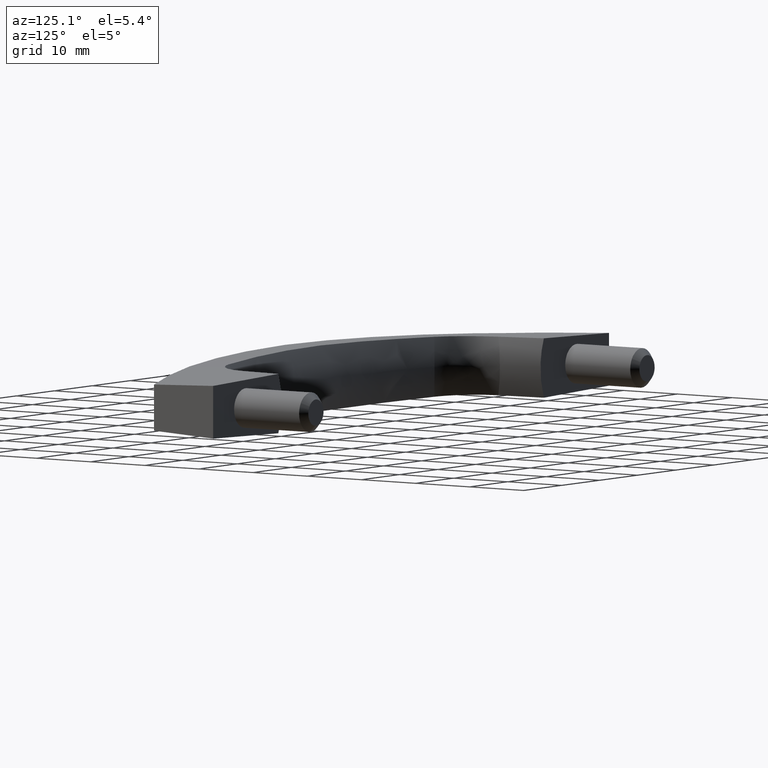
[diagram: clean part render]
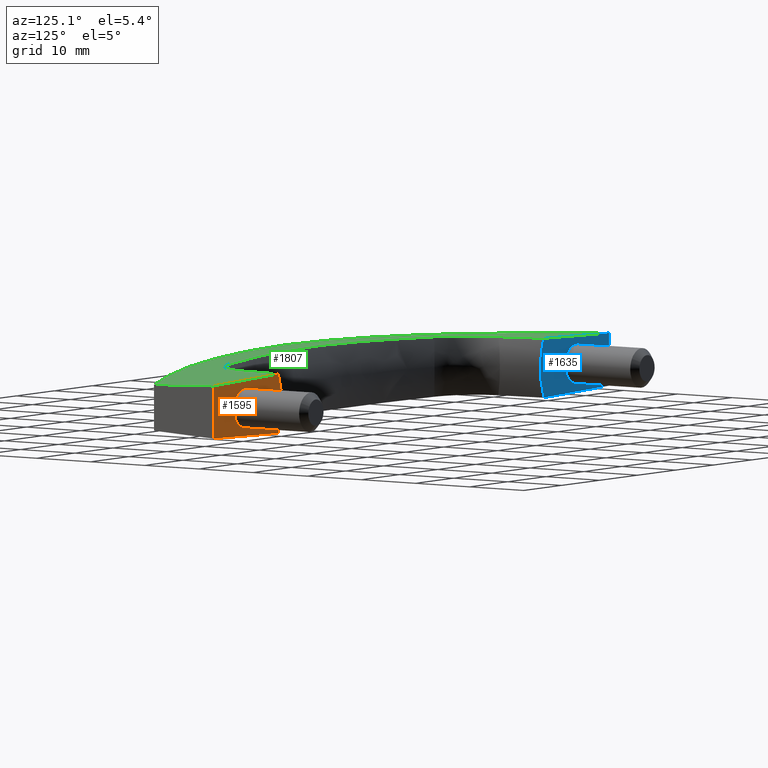
[diagram: same view with three faces highlighted in distinct colors, each labeled with its STEP entity id]
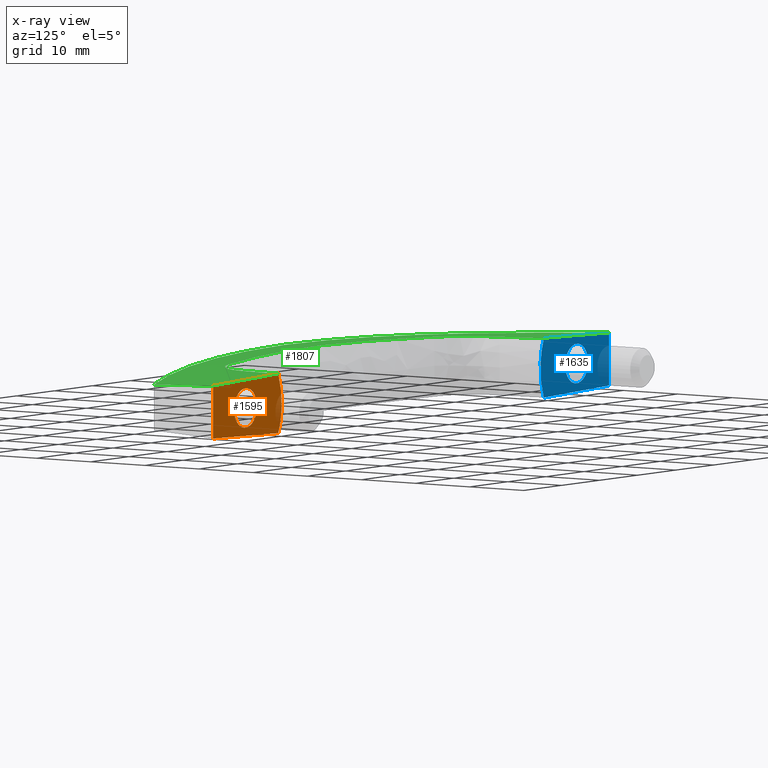
[diagram: x-ray of the same camera — body ghosted, the three highlighted faces saturated]
A machine part, auxiliary view with three faces highlighted in distinct colors.
The next image is the same camera in x-ray (body ghosted, the three faces saturated) — at least one of them is partly hidden behind the body in this view.
Their STEP definitions:

[orange] entity #1595 — the highlighted face is a freeform B-spline surface patch.
#680=CARTESIAN_POINT('',(43.854602704306281,-2.979028579051059,4.259142E-017));
#681=VERTEX_POINT('',#680);
#687=CARTESIAN_POINT('',(40.500500000000002,0.0,0.0));
#688=VERTEX_POINT('',#687);
#689=CARTESIAN_POINT('',(43.854602704306281,-2.979028579051059,4.259142E-017));
#690=CARTESIAN_POINT('',(43.678172359295303,-3.000000000000000,0.0));
#691=CARTESIAN_POINT('',(43.500500000000002,-3.0,0.0));
#692=CARTESIAN_POINT('',(40.500500000000002,-3.0,0.0));
#693=CARTESIAN_POINT('',(40.500500000000002,0.0,0.0));
#701=(BOUNDED_CURVE()B_SPLINE_CURVE(2,(#689,#690,#691,#692,#693),.UNSPECIFIED.,.F.,.U.)B_SPLINE_CURVE_WITH_KNOTS((3,2,3),(0.229562473477520,0.250000000000000,0.500000000000000),.UNSPECIFIED.)CURVE()GEOMETRIC_REPRESENTATION_ITEM()RATIONAL_B_SPLINE_CURVE((0.956026754113160,0.976055948288982,1.0,0.707106781186548,1.0))REPRESENTATION_ITEM(''));
#702=EDGE_CURVE('',#681,#688,#701,.T.);
#704=CARTESIAN_POINT('',(43.317354381319689,2.994404395260969,4.163336E-017));
#705=VERTEX_POINT('',#704);
#706=CARTESIAN_POINT('',(40.500500000000002,0.0,0.0));
#707=CARTESIAN_POINT('',(40.500500000000002,2.822118200574073,0.0));
#708=CARTESIAN_POINT('',(43.317354381319689,2.994404395260969,4.163336E-017));
#716=(BOUNDED_CURVE()B_SPLINE_CURVE(2,(#706,#707,#708),.UNSPECIFIED.,.F.,.U.)B_SPLINE_CURVE_WITH_KNOTS((3,3),(0.500000000000000,0.739332962233241),.UNSPECIFIED.)CURVE()GEOMETRIC_REPRESENTATION_ITEM()RATIONAL_B_SPLINE_CURVE((1.0,0.719603993293391,0.976072041654497))REPRESENTATION_ITEM(''));
#717=EDGE_CURVE('',#688,#705,#716,.T.);
#791=CARTESIAN_POINT('',(46.500500000000002,0.0,0.0));
#792=VERTEX_POINT('',#791);
#793=CARTESIAN_POINT('',(43.317354381319689,2.994404395260968,4.163336E-017));
#794=CARTESIAN_POINT('',(43.408841710028291,3.000000000000000,0.0));
#795=CARTESIAN_POINT('',(43.500500000000002,3.0,0.0));
#796=CARTESIAN_POINT('',(46.500500000000002,3.0,0.0));
#797=CARTESIAN_POINT('',(46.500500000000002,0.0,0.0));
#805=(BOUNDED_CURVE()B_SPLINE_CURVE(2,(#793,#794,#795,#796,#797),.UNSPECIFIED.,.F.,.U.)B_SPLINE_CURVE_WITH_KNOTS((3,2,3),(0.739332962233241,0.750000000000000,1.0),.UNSPECIFIED.)CURVE()GEOMETRIC_REPRESENTATION_ITEM()RATIONAL_B_SPLINE_CURVE((0.976072041654497,0.987502787893157,1.0,0.707106781186548,1.0))REPRESENTATION_ITEM(''));
#806=EDGE_CURVE('',#705,#792,#805,.T.);
#808=CARTESIAN_POINT('',(46.500500000000002,0.0,0.0));
#809=CARTESIAN_POINT('',(46.500500000000009,-2.664523577248798,0.0));
#810=CARTESIAN_POINT('',(43.854602704306281,-2.979028579051059,4.259142E-017));
#818=(BOUNDED_CURVE()B_SPLINE_CURVE(2,(#808,#809,#810),.UNSPECIFIED.,.F.,.U.)B_SPLINE_CURVE_WITH_KNOTS((3,3),(0.0,0.229562473477520),.UNSPECIFIED.)CURVE()GEOMETRIC_REPRESENTATION_ITEM()RATIONAL_B_SPLINE_CURVE((1.0,0.731050832897566,0.956026754113160))REPRESENTATION_ITEM(''));
#819=EDGE_CURVE('',#792,#681,#818,.T.);
#1038=CARTESIAN_POINT('',(34.890900150486601,4.506056417058750,1.000492E-013));
#1039=VERTEX_POINT('',#1038);
#1047=CARTESIAN_POINT('',(34.890900150486601,-4.506056417058740,2.667980E-013));
#1048=VERTEX_POINT('',#1047);
#1049=CARTESIAN_POINT('',(34.890900150486601,4.506056417058750,1.000492E-013));
#1050=CARTESIAN_POINT('',(33.039816790408672,6.086895E-015,1.791612E-011));
#1051=CARTESIAN_POINT('',(34.890900150486601,-4.506056417058740,2.667980E-013));
#1059=(BOUNDED_CURVE()B_SPLINE_CURVE(2,(#1049,#1050,#1051),.UNSPECIFIED.,.F.,.U.)CURVE()GEOMETRIC_REPRESENTATION_ITEM()QUASI_UNIFORM_CURVE()RATIONAL_B_SPLINE_CURVE((1.0,0.926820489205057,1.0))REPRESENTATION_ITEM(''));
#1060=EDGE_CURVE('',#1039,#1048,#1059,.T.);
#1556=CARTESIAN_POINT('',(33.101411781491620,-4.956211318858821,-7.717073E-012));
#1557=CARTESIAN_POINT('',(33.101411781491620,4.956210996560560,4.340786E-011));
#1558=CARTESIAN_POINT('',(52.899598540374022,-4.956211318858821,-1.246783E-011));
#1559=CARTESIAN_POINT('',(52.899598540374022,4.956210996560560,3.865711E-011));
#1560=B_SPLINE_SURFACE_WITH_KNOTS('',1,1,((#1556,#1558),(#1557,#1559)),.UNSPECIFIED.,.F.,.F.,.U.,(2,2),(2,2),(0.0,9.912422315419381),(0.0,19.798186758882402),.UNSPECIFIED.);
#1561=ORIENTED_EDGE('',*,*,#1060,.F.);
#1562=CARTESIAN_POINT('',(52.000500000002198,3.999999999999950,-8.881784E-013));
#1563=VERTEX_POINT('',#1562);
#1564=CARTESIAN_POINT('',(52.000500000002198,3.999999999999950,-8.881784E-013));
#1565=CARTESIAN_POINT('',(47.813754051236387,4.085719844298355,-7.697344E-013));
#1566=CARTESIAN_POINT('',(41.533052520568774,4.214311539109042,7.414367E-014));
#1567=CARTESIAN_POINT('',(36.512568682675941,4.439312170158003,1.183764E-013));
#1568=CARTESIAN_POINT('',(34.890900150486601,4.506056417058750,1.000492E-013));
#1569=B_SPLINE_CURVE_WITH_KNOTS('',3,(#1564,#1565,#1566,#1567,#1568),.UNSPECIFIED.,.F.,.U.,(4,1,4),(0.0,0.099202640815332,0.148817765787485),.UNSPECIFIED.);
#1570=EDGE_CURVE('',#1563,#1039,#1569,.T.);
#1571=ORIENTED_EDGE('',*,*,#1570,.F.);
#1572=CARTESIAN_POINT('',(52.000500000002198,-4.0,-3.774758E-012));
#1573=VERTEX_POINT('',#1572);
#1574=CARTESIAN_POINT('',(52.000500000002198,-4.0,-3.774758E-012));
#1575=CARTESIAN_POINT('',(52.000500000002198,3.999999999999950,-8.881784E-013));
#1576=QUASI_UNIFORM_CURVE('',1,(#1574,#1575),.UNSPECIFIED.,.F.,.U.);
#1577=EDGE_CURVE('',#1573,#1563,#1576,.T.);
#1578=ORIENTED_EDGE('',*,*,#1577,.F.);
#1579=CARTESIAN_POINT('',(52.000500000002198,-4.0,-3.774758E-012));
#1580=CARTESIAN_POINT('',(47.813754051236387,-4.085719844298395,-2.052625E-012));
#1581=CARTESIAN_POINT('',(41.533052520568774,-4.214311539109037,1.977164E-013));
#1582=CARTESIAN_POINT('',(36.512568682675941,-4.439312170157995,3.156705E-013));
#1583=CARTESIAN_POINT('',(34.890900150486601,-4.506056417058740,2.667980E-013));
#1584=B_SPLINE_CURVE_WITH_KNOTS('',3,(#1579,#1580,#1581,#1582,#1583),.UNSPECIFIED.,.F.,.U.,(4,1,4),(0.0,0.099202640815332,0.148817765787485),.UNSPECIFIED.);
#1585=EDGE_CURVE('',#1573,#1048,#1584,.T.);
#1586=ORIENTED_EDGE('',*,*,#1585,.T.);
#1587=EDGE_LOOP('',(#1561,#1571,#1578,#1586));
#1588=FACE_OUTER_BOUND('',#1587,.T.);
#1589=ORIENTED_EDGE('',*,*,#717,.F.);
#1590=ORIENTED_EDGE('',*,*,#702,.F.);
#1591=ORIENTED_EDGE('',*,*,#819,.F.);
#1592=ORIENTED_EDGE('',*,*,#806,.F.);
#1593=EDGE_LOOP('',(#1589,#1590,#1591,#1592));
#1594=FACE_BOUND('',#1593,.T.);
#1595=ADVANCED_FACE('',(#1588,#1594),#1560,.T.);

[blue] entity #1635 — the highlighted face is a freeform B-spline surface patch.
#494=CARTESIAN_POINT('',(-43.145897295693722,-2.979028579051059,4.259142E-017));
#495=VERTEX_POINT('',#494);
#501=CARTESIAN_POINT('',(-46.500000000000000,0.0,0.0));
#502=VERTEX_POINT('',#501);
#503=CARTESIAN_POINT('',(-43.145897295693715,-2.979028579051059,4.259142E-017));
#504=CARTESIAN_POINT('',(-43.322327640704707,-3.000000000000000,0.0));
#505=CARTESIAN_POINT('',(-43.500000000000000,-3.0,0.0));
#506=CARTESIAN_POINT('',(-46.500000000000000,-3.0,0.0));
#507=CARTESIAN_POINT('',(-46.500000000000000,0.0,0.0));
#515=(BOUNDED_CURVE()B_SPLINE_CURVE(2,(#503,#504,#505,#506,#507),.UNSPECIFIED.,.F.,.U.)B_SPLINE_CURVE_WITH_KNOTS((3,2,3),(0.229562473477520,0.250000000000000,0.500000000000000),.UNSPECIFIED.)CURVE()GEOMETRIC_REPRESENTATION_ITEM()RATIONAL_B_SPLINE_CURVE((0.956026754113160,0.976055948288982,1.0,0.707106781186548,1.0))REPRESENTATION_ITEM(''));
#516=EDGE_CURVE('',#495,#502,#515,.T.);
#518=CARTESIAN_POINT('',(-43.683145618680300,2.994404395260969,4.163336E-017));
#519=VERTEX_POINT('',#518);
#520=CARTESIAN_POINT('',(-46.500000000000000,0.0,0.0));
#521=CARTESIAN_POINT('',(-46.500000000000007,2.822118200574073,0.0));
#522=CARTESIAN_POINT('',(-43.683145618680300,2.994404395260969,4.163336E-017));
#530=(BOUNDED_CURVE()B_SPLINE_CURVE(2,(#520,#521,#522),.UNSPECIFIED.,.F.,.U.)B_SPLINE_CURVE_WITH_KNOTS((3,3),(0.500000000000000,0.739332962233241),.UNSPECIFIED.)CURVE()GEOMETRIC_REPRESENTATION_ITEM()RATIONAL_B_SPLINE_CURVE((1.0,0.719603993293391,0.976072041654497))REPRESENTATION_ITEM(''));
#531=EDGE_CURVE('',#502,#519,#530,.T.);
#605=CARTESIAN_POINT('',(-40.499999999999993,0.0,0.0));
#606=VERTEX_POINT('',#605);
#607=CARTESIAN_POINT('',(-43.683145618680300,2.994404395260968,4.163336E-017));
#608=CARTESIAN_POINT('',(-43.591658289971718,3.000000000000000,0.0));
#609=CARTESIAN_POINT('',(-43.500000000000000,3.0,0.0));
#610=CARTESIAN_POINT('',(-40.499999999999993,3.0,0.0));
#611=CARTESIAN_POINT('',(-40.499999999999993,0.0,0.0));
#619=(BOUNDED_CURVE()B_SPLINE_CURVE(2,(#607,#608,#609,#610,#611),.UNSPECIFIED.,.F.,.U.)B_SPLINE_CURVE_WITH_KNOTS((3,2,3),(0.739332962233241,0.750000000000000,1.0),.UNSPECIFIED.)CURVE()GEOMETRIC_REPRESENTATION_ITEM()RATIONAL_B_SPLINE_CURVE((0.976072041654497,0.987502787893157,1.0,0.707106781186548,1.0))REPRESENTATION_ITEM(''));
#620=EDGE_CURVE('',#519,#606,#619,.T.);
#622=CARTESIAN_POINT('',(-40.499999999999993,0.0,0.0));
#623=CARTESIAN_POINT('',(-40.499999999999986,-2.664523577248798,0.0));
#624=CARTESIAN_POINT('',(-43.145897295693715,-2.979028579051059,4.259142E-017));
#632=(BOUNDED_CURVE()B_SPLINE_CURVE(2,(#622,#623,#624),.UNSPECIFIED.,.F.,.U.)B_SPLINE_CURVE_WITH_KNOTS((3,3),(0.0,0.229562473477520),.UNSPECIFIED.)CURVE()GEOMETRIC_REPRESENTATION_ITEM()RATIONAL_B_SPLINE_CURVE((1.0,0.731050832897566,0.956026754113160))REPRESENTATION_ITEM(''));
#633=EDGE_CURVE('',#606,#495,#632,.T.);
#1101=CARTESIAN_POINT('',(-34.890390151748349,4.506056420153589,5.739415E-011));
#1102=VERTEX_POINT('',#1101);
#1127=CARTESIAN_POINT('',(-34.890390151756549,-4.506056420150210,2.667980E-013));
#1128=VERTEX_POINT('',#1127);
#1136=CARTESIAN_POINT('',(-34.890390151756549,-4.506056420150210,2.667980E-013));
#1137=CARTESIAN_POINT('',(-33.039306788926787,1.964590E-012,3.370925E-011));
#1138=CARTESIAN_POINT('',(-34.890390151748349,4.506056420153588,5.739415E-011));
#1146=(BOUNDED_CURVE()B_SPLINE_CURVE(2,(#1136,#1137,#1138),.UNSPECIFIED.,.F.,.U.)CURVE()GEOMETRIC_REPRESENTATION_ITEM()QUASI_UNIFORM_CURVE()RATIONAL_B_SPLINE_CURVE((1.0,0.926820489100624,1.0))REPRESENTATION_ITEM(''));
#1147=EDGE_CURVE('',#1128,#1102,#1146,.T.);
#1596=CARTESIAN_POINT('',(-52.899087944875852,-4.956211322259296,1.291952E-011));
#1597=CARTESIAN_POINT('',(-52.899087944875852,4.956210999964405,6.404445E-011));
#1598=CARTESIAN_POINT('',(-33.100900123931709,-4.956211322259296,8.168767E-012));
#1599=CARTESIAN_POINT('',(-33.100900123931709,4.956210999964405,5.929370E-011));
#1600=B_SPLINE_SURFACE_WITH_KNOTS('',1,1,((#1596,#1598),(#1597,#1599)),.UNSPECIFIED.,.F.,.F.,.U.,(2,2),(2,2),(0.0,9.912422322223701),(0.0,19.798187820944140),.UNSPECIFIED.);
#1601=ORIENTED_EDGE('',*,*,#1147,.F.);
#1602=CARTESIAN_POINT('',(-51.999990000002107,-4.0,-2.442491E-012));
#1603=VERTEX_POINT('',#1602);
#1604=CARTESIAN_POINT('',(-34.890390151756549,-4.506056420150210,2.667980E-013));
#1605=CARTESIAN_POINT('',(-36.512058663586387,-4.439312172977235,3.156705E-013));
#1606=CARTESIAN_POINT('',(-41.532542203406862,-4.214311548218846,1.977165E-013));
#1607=CARTESIAN_POINT('',(-47.813243978924412,-4.085719846825340,-2.052625E-012));
#1608=CARTESIAN_POINT('',(-51.999990000002107,-4.0,-2.442491E-012));
#1609=B_SPLINE_CURVE_WITH_KNOTS('',3,(#1604,#1605,#1606,#1607,#1608),.UNSPECIFIED.,.F.,.U.,(4,1,4),(0.851182230981259,0.900797359184668,1.0),.UNSPECIFIED.);
#1610=EDGE_CURVE('',#1128,#1603,#1609,.T.);
#1611=ORIENTED_EDGE('',*,*,#1610,.T.);
#1612=CARTESIAN_POINT('',(-51.999990000002200,3.999999999999950,-8.881784E-013));
#1613=VERTEX_POINT('',#1612);
#1614=CARTESIAN_POINT('',(-51.999990000002107,-4.0,-2.442491E-012));
#1615=CARTESIAN_POINT('',(-51.999990000002200,3.999999999999950,-8.881784E-013));
#1616=QUASI_UNIFORM_CURVE('',1,(#1614,#1615),.UNSPECIFIED.,.F.,.U.);
#1617=EDGE_CURVE('',#1603,#1613,#1616,.T.);
#1618=ORIENTED_EDGE('',*,*,#1617,.T.);
#1619=CARTESIAN_POINT('',(-34.890390151748349,4.506056420153589,5.739415E-011));
#1620=CARTESIAN_POINT('',(-36.512058663580653,4.439312172977503,1.183764E-013));
#1621=CARTESIAN_POINT('',(-41.532542203403288,4.214311548218925,7.414368E-014));
#1622=CARTESIAN_POINT('',(-47.813243978924497,4.085719846825300,-7.697344E-013));
#1623=CARTESIAN_POINT('',(-51.999990000002200,3.999999999999950,-8.881784E-013));
#1624=B_SPLINE_CURVE_WITH_KNOTS('',3,(#1619,#1620,#1621,#1622,#1623),.UNSPECIFIED.,.F.,.U.,(4,1,4),(0.851182230981173,0.900797359184668,1.0),.UNSPECIFIED.);
#1625=EDGE_CURVE('',#1102,#1613,#1624,.T.);
#1626=ORIENTED_EDGE('',*,*,#1625,.F.);
#1627=EDGE_LOOP('',(#1601,#1611,#1618,#1626));
#1628=FACE_OUTER_BOUND('',#1627,.T.);
#1629=ORIENTED_EDGE('',*,*,#531,.F.);
#1630=ORIENTED_EDGE('',*,*,#516,.F.);
#1631=ORIENTED_EDGE('',*,*,#633,.F.);
#1632=ORIENTED_EDGE('',*,*,#620,.F.);
#1633=EDGE_LOOP('',(#1629,#1630,#1631,#1632));
#1634=FACE_BOUND('',#1633,.T.);
#1635=ADVANCED_FACE('',(#1628,#1634),#1600,.T.);

[green] entity #1807 — the highlighted face is a freeform B-spline surface patch.
#863=CARTESIAN_POINT('',(51.000556732043997,3.500028366020975,11.623340546744480));
#864=VERTEX_POINT('',#863);
#865=CARTESIAN_POINT('',(-51.000025265063101,3.500017632523155,11.623590079103939));
#866=VERTEX_POINT('',#865);
#867=CARTESIAN_POINT('',(51.000556732043997,3.500028366020975,11.623340546744480));
#868=CARTESIAN_POINT('',(49.999002726022930,3.531916449465963,12.093589387801240));
#869=CARTESIAN_POINT('',(48.993465843662143,3.569178366427639,12.548806289668089));
#870=CARTESIAN_POINT('',(46.974492879915758,3.652934378367684,13.429608249697329));
#871=CARTESIAN_POINT('',(45.961057254128853,3.699441997909214,13.855193233760520));
#872=CARTESIAN_POINT('',(43.926277058533223,3.798477331912412,14.677103705804670));
#873=CARTESIAN_POINT('',(42.904933040966462,3.851020688427025,15.073429199283540));
#874=CARTESIAN_POINT('',(40.854234036196416,3.956753661188666,15.837134774048501));
#875=CARTESIAN_POINT('',(39.824873357617982,4.009764096124000,16.204517078858089));
#876=CARTESIAN_POINT('',(37.757962069904799,4.109431895350990,16.910579360238700));
#877=CARTESIAN_POINT('',(36.720413839877892,4.156170116268301,17.249257651894521));
#878=CARTESIAN_POINT('',(34.637102472804152,4.241789660878911,17.898012680260749));
#879=CARTESIAN_POINT('',(33.591339739675782,4.280688630668315,18.208088633844529));
#880=CARTESIAN_POINT('',(31.491679830943479,4.352915881823312,18.799638889055490));
#881=CARTESIAN_POINT('',(30.437785816641899,4.386344299365500,19.081111878358410));
#882=CARTESIAN_POINT('',(28.322021211798781,4.452714076332899,19.615380127274580));
#883=CARTESIAN_POINT('',(27.260148453099450,4.485583844551221,19.868176656518070));
#884=CARTESIAN_POINT('',(25.128413401189999,4.551173081820926,20.345002578310780));
#885=CARTESIAN_POINT('',(24.058550642595179,4.583875464557368,20.569032461515079));
#886=CARTESIAN_POINT('',(21.910736677450942,4.647444661569059,20.988182486766551));
#887=CARTESIAN_POINT('',(20.832784705203281,4.678285943259620,21.183303108867630));
#888=CARTESIAN_POINT('',(18.668618978032740,4.734851863109988,21.544426299372770));
#889=CARTESIAN_POINT('',(17.582404978788539,4.760572779791754,21.710428459566391));
#890=CARTESIAN_POINT('',(15.401641027785750,4.807195644244615,22.013009732584290));
#891=CARTESIAN_POINT('',(14.307091453292490,4.828109198884669,22.149588732338330));
#892=CARTESIAN_POINT('',(12.658977065303720,4.857030791915112,22.332104965683460));
#893=CARTESIAN_POINT('',(12.108162783310890,4.866277874380287,22.389252457622909));
#894=CARTESIAN_POINT('',(11.007506080033330,4.884201144090866,22.495757679841422));
#895=CARTESIAN_POINT('',(10.457435601360650,4.892883453597388,22.545146488110269));
#896=CARTESIAN_POINT('',(8.807988132289959,4.918563493852848,22.681797193189858));
#897=CARTESIAN_POINT('',(7.709375502001534,4.935140206601808,22.757545515715460));
#898=CARTESIAN_POINT('',(4.416604816389818,4.978782345057838,22.939247304400489));
#899=CARTESIAN_POINT('',(2.225511809313357,4.999755386272868,22.999690916634780));
#900=CARTESIAN_POINT('',(-2.148375621563903,5.000240363043934,23.001096687549321));
#901=CARTESIAN_POINT('',(-4.331169221576038,4.979651874879330,22.942061397147000));
#902=CARTESIAN_POINT('',(-7.599363656990462,4.936710861738606,22.764501313341210));
#903=CARTESIAN_POINT('',(-8.687761816482308,4.920379859966935,22.690471264974612));
#904=CARTESIAN_POINT('',(-10.862586770261469,4.886609899778943,22.512719755969790));
#905=CARTESIAN_POINT('',(-11.949014786770730,4.869296781930019,22.408997975447569));
#906=CARTESIAN_POINT('',(-14.119874992412861,4.831542045238783,22.171794869050519));
#907=CARTESIAN_POINT('',(-15.204306938737910,4.811075219356352,22.038313637763949));
#908=CARTESIAN_POINT('',(-17.371149789208069,4.765350302335436,21.741458559034239));
#909=CARTESIAN_POINT('',(-18.453560568742471,4.740078709467575,21.578084844726138));
#910=CARTESIAN_POINT('',(-20.616342779029249,4.684241908919143,21.221242710653229));
#911=CARTESIAN_POINT('',(-21.696713474227220,4.653599707533013,21.027774672047840));
#912=CARTESIAN_POINT('',(-23.855426540330139,4.590007380337123,20.610464076751480));
#913=CARTESIAN_POINT('',(-24.933769402922039,4.557107226098075,20.386621489054370));
#914=CARTESIAN_POINT('',(-26.549758825610759,4.507439015716843,20.027810333352068));
#915=CARTESIAN_POINT('',(-27.088167645570461,4.490816049962085,19.904364820701499));
#916=CARTESIAN_POINT('',(-28.164473539714329,4.457465570621349,19.649738821208398));
#917=CARTESIAN_POINT('',(-28.701891684283389,4.440753470120943,19.518667853623541));
#918=CARTESIAN_POINT('',(-30.309634480285791,4.390390571124663,19.114771966315441));
#919=CARTESIAN_POINT('',(-31.376394350853928,4.356671603088663,18.831042681396340));
#920=CARTESIAN_POINT('',(-33.499654758143748,4.283995513256559,18.234895866171922));
#921=CARTESIAN_POINT('',(-34.556150467388122,4.244907955321901,17.922480116042479));
#922=CARTESIAN_POINT('',(-36.658830689308068,4.158850787373298,17.269127855942720));
#923=CARTESIAN_POINT('',(-37.705014801088758,4.111864449929127,16.928192197698909));
#924=CARTESIAN_POINT('',(-39.787159076134976,4.011644228251094,16.217854258796670));
#925=CARTESIAN_POINT('',(-40.823116469606717,3.958328160219311,15.848453876523619));
#926=CARTESIAN_POINT('',(-42.885050260478657,3.852014846890776,15.081096670595670));
#927=CARTESIAN_POINT('',(-43.911033667305333,3.799209022406623,14.683137019843731));
#928=CARTESIAN_POINT('',(-45.953203617062663,3.699772870704951,13.858488127585771));
#929=CARTESIAN_POINT('',(-46.969389412460693,3.653125293275986,13.431798809787560));
#930=CARTESIAN_POINT('',(-48.992021212346202,3.569199654447789,12.549472302757300));
#931=CARTESIAN_POINT('',(-49.998466607348611,3.531906923342089,12.093835123569660));
#932=CARTESIAN_POINT('',(-51.000025265063101,3.500017632523155,11.623590079103939));
#933=B_SPLINE_CURVE_WITH_KNOTS('',3,(#867,#868,#869,#870,#871,#872,#873,#874,#875,#876,#877,#878,#879,#880,#881,#882,#883,#884,#885,#886,#887,#888,#889,#890,#891,#892,#893,#894,#895,#896,#897,#898,#899,#900,#901,#902,#903,#904,#905,#906,#907,#908,#909,#910,#911,#912,#913,#914,#915,#916,#917,#918,#919,#920,#921,#922,#923,#924,#925,#926,#927,#928,#929,#930,#931,#932),.UNSPECIFIED.,.F.,.U.,(4,2,2,2,2,2,2,2,2,2,2,2,2,2,2,2,2,2,2,2,2,2,2,2,2,2,2,2,2,2,2,2,4),(0.0,0.031250000000000,0.062500000000000,0.093750000000000,0.125000000000000,0.156250000000000,0.187500000000000,0.218750000000000,0.250000000000000,0.281250000000000,0.312500000000000,0.343750000000000,0.375000000000000,0.390625000000000,0.406250000000000,0.437500000000000,0.500000000000000,0.562500000000000,0.593750000000000,0.625000000000000,0.656250000000000,0.687500000000000,0.718750000000000,0.750000000000000,0.765624999999999,0.781249999999999,0.812500000000000,0.843750000000000,0.875000000000000,0.906250000000000,0.937500000000000,0.968750000000000,1.0),.UNSPECIFIED.);
#934=EDGE_CURVE('',#864,#866,#933,.T.);
#1036=CARTESIAN_POINT('',(33.607991988725203,4.442346194605840,7.508706836888160));
#1037=VERTEX_POINT('',#1036);
#1038=CARTESIAN_POINT('',(34.890900150486601,4.506056417058750,1.000492E-013));
#1039=VERTEX_POINT('',#1038);
#1040=CARTESIAN_POINT('',(33.607991988725203,4.442346194605840,7.508706836888160));
#1041=CARTESIAN_POINT('',(34.035648048315409,4.463811344574097,5.005809925797155));
#1042=CARTESIAN_POINT('',(34.463232950795799,4.484916195967482,2.502897770374100));
#1043=CARTESIAN_POINT('',(34.890900150486601,4.506056417058750,1.000492E-013));
#1044=B_SPLINE_CURVE_WITH_KNOTS('',3,(#1040,#1041,#1042,#1043),.UNSPECIFIED.,.F.,.U.,(4,4),(0.000312919295445,0.007930700463083),.UNSPECIFIED.);
#1045=EDGE_CURVE('',#1037,#1039,#1044,.T.);
#1101=CARTESIAN_POINT('',(-34.890390151748349,4.506056420153589,5.739415E-011));
#1102=VERTEX_POINT('',#1101);
#1103=CARTESIAN_POINT('',(-33.607331369087397,4.442361751736540,7.508069904416750));
#1104=VERTEX_POINT('',#1103);
#1105=CARTESIAN_POINT('',(-34.890390151748349,4.506056420153589,5.739415E-011));
#1106=CARTESIAN_POINT('',(-34.462672746073082,4.484921358293765,2.502685459540849));
#1107=CARTESIAN_POINT('',(-34.035037630215207,4.463821674523772,5.005385302874955));
#1108=CARTESIAN_POINT('',(-33.607331369087397,4.442361751736540,7.508069904416750));
#1109=B_SPLINE_CURVE_WITH_KNOTS('',3,(#1105,#1106,#1107,#1108),.UNSPECIFIED.,.F.,.U.,(4,4),(0.0,0.007617178623084),.UNSPECIFIED.);
#1110=EDGE_CURVE('',#1102,#1104,#1109,.T.);
#1246=CARTESIAN_POINT('',(27.009575406474450,4.546287756967490,14.676112830088680));
#1247=VERTEX_POINT('',#1246);
#1271=CARTESIAN_POINT('',(33.607991988725203,4.442346194605840,7.508706836888160));
#1272=CARTESIAN_POINT('',(33.534869230466960,4.438688993223167,7.935821377518189));
#1273=CARTESIAN_POINT('',(33.433115063690160,4.436302769451966,8.352984179372207));
#1274=CARTESIAN_POINT('',(33.173474661238068,4.433904568898523,9.167868778085147));
#1275=CARTESIAN_POINT('',(33.015582315052491,4.433893220949041,9.565588451750804));
#1276=CARTESIAN_POINT('',(32.781683320290973,4.435301457856895,10.050039272132940));
#1277=CARTESIAN_POINT('',(32.733067995521402,4.435654388921470,10.146291421871011));
#1278=CARTESIAN_POINT('',(32.632092827994029,4.436501943255839,10.337494148991929));
#1279=CARTESIAN_POINT('',(32.579659158411943,4.436997522901449,10.432558189612269));
#1280=CARTESIAN_POINT('',(32.417961844339857,4.438680717942960,10.713484955245089));
#1281=CARTESIAN_POINT('',(32.303957393698717,4.440066919131948,10.895793330398829));
#1282=CARTESIAN_POINT('',(31.943632823578920,4.444957150544499,11.428037210304041));
#1283=CARTESIAN_POINT('',(31.679082254072959,4.449189279586370,11.763356230214720));
#1284=CARTESIAN_POINT('',(31.245453130606911,4.456818767797773,12.236829688437050));
#1285=CARTESIAN_POINT('',(31.094755987905351,4.459576364932001,12.389720447271740));
#1286=CARTESIAN_POINT('',(30.859251212906351,4.464020550792041,12.611473558005381));
#1287=CARTESIAN_POINT('',(30.779104952269488,4.465554598971169,12.684184504653500));
#1288=CARTESIAN_POINT('',(30.615884116790159,4.468718335770317,12.826785563091811));
#1289=CARTESIAN_POINT('',(30.533198988688738,4.470340433231699,12.896339999130911));
#1290=CARTESIAN_POINT('',(30.114494506314390,4.478640761818783,13.235535853644480));
#1291=CARTESIAN_POINT('',(29.762709898537491,4.485872851531410,13.479564533814150));
#1292=CARTESIAN_POINT('',(29.026712135718530,4.501412193572803,13.914939613498120));
#1293=CARTESIAN_POINT('',(28.642503202515790,4.509731478232490,14.106292457517281));
#1294=CARTESIAN_POINT('',(28.041380559604260,4.523020404651811,14.353017924105300));
#1295=CARTESIAN_POINT('',(27.838193318292461,4.527555439482110,14.427953268985959));
#1296=CARTESIAN_POINT('',(27.427442846309170,4.536793917069197,14.563011187414990));
#1297=CARTESIAN_POINT('',(27.219700432018321,4.541501308983151,14.623211116720990));
#1298=CARTESIAN_POINT('',(27.009575406474450,4.546287756967490,14.676112830088680));
#1299=B_SPLINE_CURVE_WITH_KNOTS('',3,(#1271,#1272,#1273,#1274,#1275,#1276,#1277,#1278,#1279,#1280,#1281,#1282,#1283,#1284,#1285,#1286,#1287,#1288,#1289,#1290,#1291,#1292,#1293,#1294,#1295,#1296,#1297,#1298),.UNSPECIFIED.,.F.,.U.,(4,2,2,2,2,2,2,2,2,2,2,2,2,4),(0.000019243085222,0.125000000000002,0.250000000000004,0.281250000000005,0.312500000000005,0.375000000000005,0.500000000000005,0.562500000000005,0.593750000000005,0.625000000000005,0.750000000000003,0.875000000000002,0.937500000000001,0.999986105413368),.UNSPECIFIED.);
#1300=EDGE_CURVE('',#1037,#1247,#1299,.T.);
#1363=CARTESIAN_POINT('',(-27.008360715719100,4.546306532687479,14.676013701554300));
#1364=VERTEX_POINT('',#1363);
#1422=CARTESIAN_POINT('',(-27.008360715719100,4.546306532687479,14.676013701554300));
#1423=CARTESIAN_POINT('',(-27.428527527012950,4.536736034112129,14.570225383091650));
#1424=CARTESIAN_POINT('',(-27.836308986632648,4.527549189435368,14.436104961014230));
#1425=CARTESIAN_POINT('',(-28.627628921612171,4.510051404664612,14.112292975691940));
#1426=CARTESIAN_POINT('',(-29.011165406792600,4.501739704501963,13.922596901001230));
#1427=CARTESIAN_POINT('',(-29.474783639523348,4.491946020724687,13.649322762054720));
#1428=CARTESIAN_POINT('',(-29.566713420962969,4.490017048465754,13.592851669316850));
#1429=CARTESIAN_POINT('',(-29.748954026807510,4.486219834378602,13.476205509311040));
#1430=CARTESIAN_POINT('',(-29.839224381874882,4.484352506720157,13.416043485194191));
#1431=CARTESIAN_POINT('',(-30.105323927141580,4.478888766358844,13.231504382208390));
#1432=CARTESIAN_POINT('',(-30.277218913655300,4.475413050155725,13.102595437705901));
#1433=CARTESIAN_POINT('',(-30.776710526688181,4.465507568992322,12.698562176413290));
#1434=CARTESIAN_POINT('',(-31.088183469212961,4.459596033801875,12.406205906652101));
#1435=CARTESIAN_POINT('',(-31.523079962806069,4.451928392707317,11.933134310635991));
#1436=CARTESIAN_POINT('',(-31.662642610970849,4.449573453084122,11.769669014817250));
#1437=CARTESIAN_POINT('',(-31.863714334068309,4.446372327821658,11.515628914626991));
#1438=CARTESIAN_POINT('',(-31.929488251838610,4.445358709311177,11.429290637538500));
#1439=CARTESIAN_POINT('',(-32.057371130972832,4.443460450690862,11.254818066747630));
#1440=CARTESIAN_POINT('',(-32.119521746016382,4.442574982369417,11.166647087401991));
#1441=CARTESIAN_POINT('',(-32.421485931594688,4.438470200084765,10.721204920391100));
#1442=CARTESIAN_POINT('',(-32.635061671429781,4.436215272191094,10.350239161784760));
#1443=CARTESIAN_POINT('',(-32.914996438793111,4.434499612136499,9.772688358742910));
#1444=CARTESIAN_POINT('',(-33.001544462786612,4.434206158522413,9.576641127878336));
#1445=CARTESIAN_POINT('',(-33.121190541733959,4.434204788131511,9.277258778663219));
#1446=CARTESIAN_POINT('',(-33.159375012832527,4.434277506065858,9.176578596377389));
#1447=CARTESIAN_POINT('',(-33.232324428597607,4.434573319885877,8.973433343561464));
#1448=CARTESIAN_POINT('',(-33.267131740150312,4.434796846534398,8.870832634700490));
#1449=CARTESIAN_POINT('',(-33.431958885325209,4.436295794758693,8.355118834111906));
#1450=CARTESIAN_POINT('',(-33.534191145888023,4.438704910472019,7.935204936727493));
#1451=CARTESIAN_POINT('',(-33.607331369087397,4.442361751736540,7.508069904416750));
#1452=B_SPLINE_CURVE_WITH_KNOTS('',3,(#1422,#1423,#1424,#1425,#1426,#1427,#1428,#1429,#1430,#1431,#1432,#1433,#1434,#1435,#1436,#1437,#1438,#1439,#1440,#1441,#1442,#1443,#1444,#1445,#1446,#1447,#1448,#1449,#1450,#1451),.UNSPECIFIED.,.F.,.U.,(4,2,2,2,2,2,2,2,2,2,2,2,2,2,4),(0.000012636747814,0.124999999999998,0.249999999999996,0.281249999999996,0.312499999999996,0.374999999999996,0.499999999999997,0.562499999999997,0.593749999999999,0.625000000000000,0.750000000000001,0.812500000000001,0.843750000000001,0.875000000000001,0.999983140214644),.UNSPECIFIED.);
#1453=EDGE_CURVE('',#1364,#1104,#1452,.T.);
#1515=CARTESIAN_POINT('',(27.009575406474450,4.546287756967490,14.676112830088680));
#1516=CARTESIAN_POINT('',(25.901044904262118,4.571540404280778,14.954844897927391));
#1517=CARTESIAN_POINT('',(24.789967372933649,4.595600238889582,15.216247311574900));
#1518=CARTESIAN_POINT('',(22.562814489052599,4.643931637986294,15.705715590281709));
#1519=CARTESIAN_POINT('',(21.446736720589609,4.668176046358387,15.933768377878099));
#1520=CARTESIAN_POINT('',(19.209788843600990,4.717365210588707,16.356887305959589));
#1521=CARTESIAN_POINT('',(18.088917929078669,4.742292560778867,16.551950161077588));
#1522=CARTESIAN_POINT('',(15.842199415116699,4.790407227158206,16.908138899640552));
#1523=CARTESIAN_POINT('',(14.716351637445531,4.813595765146322,17.069263401897061));
#1524=CARTESIAN_POINT('',(12.459586825539400,4.857210931934639,17.357071927357499));
#1525=CARTESIAN_POINT('',(11.328670925890121,4.877653804396246,17.483761641501101));
#1526=CARTESIAN_POINT('',(9.061747163885697,4.915790961105074,17.702543008300161));
#1527=CARTESIAN_POINT('',(7.925749071825529,4.933597791181395,17.794687196619709));
#1528=CARTESIAN_POINT('',(6.217766523484789,4.956603975713355,17.906024525662531));
#1529=CARTESIAN_POINT('',(5.362778072084945,4.967174436771764,17.954968645242310));
#1530=CARTESIAN_POINT('',(4.506253976189444,4.975963966930590,17.993601525370160));
#1531=CARTESIAN_POINT('',(3.934891899437448,4.981383377021070,18.017038475664101));
#1532=CARTESIAN_POINT('',(3.648934845679842,4.983873798372072,18.027601024383699));
#1533=CARTESIAN_POINT('',(2.219750939243214,4.995102343867256,18.074503977993789));
#1534=CARTESIAN_POINT('',(1.078572123538454,5.000167588434878,18.093123987217162));
#1535=CARTESIAN_POINT('',(-2.338264897180855,4.999612705352152,18.091052207483560));
#1536=CARTESIAN_POINT('',(-4.607248518339269,4.978524395817349,18.012614506466939));
#1537=CARTESIAN_POINT('',(-7.998670397941461,4.932485534043104,17.788928733561772));
#1538=CARTESIAN_POINT('',(-9.127133439326837,4.914729377296653,17.696678568845321));
#1539=CARTESIAN_POINT('',(-11.380205414046911,4.876729725290596,17.478001928595170));
#1540=CARTESIAN_POINT('',(-12.504805984964911,4.856359743754996,17.351516933499049));
#1541=CARTESIAN_POINT('',(-14.750143820973021,4.812900803587043,17.064318212262059));
#1542=CARTESIAN_POINT('',(-15.870880210222939,4.789795675567526,16.903598734300161));
#1543=CARTESIAN_POINT('',(-18.108546924233231,4.741849913987877,16.548316425988329));
#1544=CARTESIAN_POINT('',(-19.225477422419541,4.717008814316576,16.353755208124738));
#1545=CARTESIAN_POINT('',(-21.455661096291440,4.667972282925362,15.931634327549180));
#1546=CARTESIAN_POINT('',(-22.568914698590081,4.643790418772426,15.704076731631400));
#1547=CARTESIAN_POINT('',(-24.791553081376168,4.595557079956453,15.215488223707350));
#1548=CARTESIAN_POINT('',(-25.900939735948530,4.571533207694271,14.954470522490830));
#1549=CARTESIAN_POINT('',(-27.008360715719100,4.546306532687479,14.676013701554300));
#1550=B_SPLINE_CURVE_WITH_KNOTS('',3,(#1515,#1516,#1517,#1518,#1519,#1520,#1521,#1522,#1523,#1524,#1525,#1526,#1527,#1528,#1529,#1530,#1531,#1532,#1533,#1534,#1535,#1536,#1537,#1538,#1539,#1540,#1541,#1542,#1543,#1544,#1545,#1546,#1547,#1548,#1549),.UNSPECIFIED.,.F.,.U.,(4,2,2,2,2,2,2,1,2,2,2,2,2,2,2,2,2,4),(0.000007899330929,0.062500000000000,0.125000000000000,0.187500000000000,0.250000000000000,0.312500000000000,0.375000000000000,0.406250000000000,0.421875000000000,0.437500000000000,0.500000000000000,0.625000000000000,0.687500000000000,0.750000000000000,0.812500000000000,0.875000000000000,0.937500000000000,0.999992811110389),.UNSPECIFIED.);
#1551=EDGE_CURVE('',#1247,#1364,#1550,.T.);
#1562=CARTESIAN_POINT('',(52.000500000002198,3.999999999999950,-8.881784E-013));
#1563=VERTEX_POINT('',#1562);
#1564=CARTESIAN_POINT('',(52.000500000002198,3.999999999999950,-8.881784E-013));
#1565=CARTESIAN_POINT('',(47.813754051236387,4.085719844298355,-7.697344E-013));
#1566=CARTESIAN_POINT('',(41.533052520568774,4.214311539109042,7.414367E-014));
#1567=CARTESIAN_POINT('',(36.512568682675941,4.439312170158003,1.183764E-013));
#1568=CARTESIAN_POINT('',(34.890900150486601,4.506056417058750,1.000492E-013));
#1569=B_SPLINE_CURVE_WITH_KNOTS('',3,(#1564,#1565,#1566,#1567,#1568),.UNSPECIFIED.,.F.,.U.,(4,1,4),(0.0,0.099202640815332,0.148817765787485),.UNSPECIFIED.);
#1570=EDGE_CURVE('',#1563,#1039,#1569,.T.);
#1612=CARTESIAN_POINT('',(-51.999990000002200,3.999999999999950,-8.881784E-013));
#1613=VERTEX_POINT('',#1612);
#1619=CARTESIAN_POINT('',(-34.890390151748349,4.506056420153589,5.739415E-011));
#1620=CARTESIAN_POINT('',(-36.512058663580653,4.439312172977503,1.183764E-013));
#1621=CARTESIAN_POINT('',(-41.532542203403288,4.214311548218925,7.414368E-014));
#1622=CARTESIAN_POINT('',(-47.813243978924497,4.085719846825300,-7.697344E-013));
#1623=CARTESIAN_POINT('',(-51.999990000002200,3.999999999999950,-8.881784E-013));
#1624=B_SPLINE_CURVE_WITH_KNOTS('',3,(#1619,#1620,#1621,#1622,#1623),.UNSPECIFIED.,.F.,.U.,(4,1,4),(0.851182230981173,0.900797359184668,1.0),.UNSPECIFIED.);
#1625=EDGE_CURVE('',#1102,#1613,#1624,.T.);
#1647=CARTESIAN_POINT('',(-51.999990000002200,3.999999999999950,-8.881784E-013));
#1648=CARTESIAN_POINT('',(-51.000025265063101,3.500017632523155,11.623590079103939));
#1649=QUASI_UNIFORM_CURVE('',1,(#1647,#1648),.UNSPECIFIED.,.F.,.U.);
#1650=EDGE_CURVE('',#1613,#866,#1649,.T.);
#1661=CARTESIAN_POINT('',(52.000500000002198,3.999999999999950,-8.881784E-013));
#1662=CARTESIAN_POINT('',(51.000556732043997,3.500028366020975,11.623340546744480));
#1663=QUASI_UNIFORM_CURVE('',1,(#1661,#1662),.UNSPECIFIED.,.F.,.U.);
#1664=EDGE_CURVE('',#1563,#864,#1663,.T.);
#1742=CARTESIAN_POINT('',(52.000500000002198,3.999999999999950,-1.332268E-012));
#1743=CARTESIAN_POINT('',(51.315563570689271,3.657531785343573,7.961701054331950));
#1744=CARTESIAN_POINT('',(50.630627141376181,3.315063570687151,15.923402108666171));
#1745=CARTESIAN_POINT('',(49.945690712063197,2.972595356030772,23.885103162999592));
#1746=CARTESIAN_POINT('',(47.813754051236387,4.085719844298355,-7.697344E-013));
#1747=CARTESIAN_POINT('',(47.418020372261729,3.824361002903241,7.961701054332894));
#1748=CARTESIAN_POINT('',(47.022286693286887,3.563002161508102,15.923402108667091));
#1749=CARTESIAN_POINT('',(46.626553014312123,3.301643320112986,23.885103163000810));
#1750=CARTESIAN_POINT('',(39.398196704816101,4.258020784992425,3.609839E-013));
#1751=CARTESIAN_POINT('',(39.583774230293933,4.159695619479553,7.961701054334784));
#1752=CARTESIAN_POINT('',(39.769351755771773,4.061370453966697,15.923402108668910));
#1753=CARTESIAN_POINT('',(39.954929281249591,3.963045288453829,23.885103163003290));
#1754=CARTESIAN_POINT('',(30.153283667493952,4.776967248973491,-9.716710E-014));
#1755=CARTESIAN_POINT('',(30.103365561536229,4.626928240622954,7.961701054334003));
#1756=CARTESIAN_POINT('',(30.053447455578500,4.476889232272424,15.923402108668190));
#1757=CARTESIAN_POINT('',(30.003529349620781,4.326850223921893,23.885103163002299));
#1758=CARTESIAN_POINT('',(19.959447765986301,4.621585742420940,2.616037E-014));
#1759=CARTESIAN_POINT('',(19.972759259119261,4.661980854634585,7.961701054334212));
#1760=CARTESIAN_POINT('',(19.986070752252221,4.702375966848241,15.923402108668400));
#1761=CARTESIAN_POINT('',(19.999382245385210,4.742771079061895,23.885103163002579));
#1762=CARTESIAN_POINT('',(10.010456916853521,4.936689784906569,-7.474391E-015));
#1763=CARTESIAN_POINT('',(10.007129043674629,4.925148324594675,7.961701054334172));
#1764=CARTESIAN_POINT('',(10.003801170495731,4.913606864282780,15.923402108668350));
#1765=CARTESIAN_POINT('',(10.000473297316850,4.902065403970886,23.885103163002491));
#1766=CARTESIAN_POINT('',(0.000255012069087,5.031655107487890,3.737195E-015));
#1767=CARTESIAN_POINT('',(0.000255012067391,5.037425837705816,7.961701054334164));
#1768=CARTESIAN_POINT('',(0.000255012065695,5.043196567923745,15.923402108668339));
#1769=CARTESIAN_POINT('',(0.000255012063999,5.048967298141662,23.885103163002519));
#1770=CARTESIAN_POINT('',(-10.009946965130300,4.936689784250800,-7.474391E-015));
#1771=CARTESIAN_POINT('',(-10.006619091944611,4.925148323528688,7.961701054334172));
#1772=CARTESIAN_POINT('',(-10.003291218758941,4.913606862806584,15.923402108668350));
#1773=CARTESIAN_POINT('',(-9.999963345573265,4.902065402084474,23.885103163002491));
#1774=CARTESIAN_POINT('',(-19.958937497915851,4.621585748182760,2.616037E-014));
#1775=CARTESIAN_POINT('',(-19.972248990906820,4.661980861519921,7.961701054334204));
#1776=CARTESIAN_POINT('',(-19.985560483897821,4.702375974857093,15.923402108668389));
#1777=CARTESIAN_POINT('',(-19.998871976888790,4.742771088194257,23.885103163002579));
#1778=CARTESIAN_POINT('',(-30.152774298187801,4.776967236859551,-9.716710E-014));
#1779=CARTESIAN_POINT('',(-30.102856192512860,4.626928223482298,7.961701054334003));
#1780=CARTESIAN_POINT('',(-30.052938086837969,4.476889210105042,15.923402108668190));
#1781=CARTESIAN_POINT('',(-30.003019981163071,4.326850196727793,23.885103163002299));
#1782=CARTESIAN_POINT('',(-39.397686229041291,4.258020797883270,3.609839E-013));
#1783=CARTESIAN_POINT('',(-39.583263767673657,4.159695637466933,7.961701054334784));
#1784=CARTESIAN_POINT('',(-39.768841306306037,4.061370477050609,15.923402108668910));
#1785=CARTESIAN_POINT('',(-39.954418844938402,3.963045316634273,23.885103163003290));
#1786=CARTESIAN_POINT('',(-47.813243978924497,4.085719846825300,-7.697344E-013));
#1787=CARTESIAN_POINT('',(-47.417510298396621,3.824361005462132,7.961701054332885));
#1788=CARTESIAN_POINT('',(-47.021776617868817,3.563002164098936,15.923402108667119));
#1789=CARTESIAN_POINT('',(-46.626042937341033,3.301643322735763,23.885103163000821));
#1790=CARTESIAN_POINT('',(-51.999990000002200,3.999999999999950,-1.332268E-012));
#1791=CARTESIAN_POINT('',(-51.315053570689273,3.657531785343573,7.961701054331940));
#1792=CARTESIAN_POINT('',(-50.630117141376182,3.315063570687151,15.923402108666210));
#1793=CARTESIAN_POINT('',(-49.945180712063213,2.972595356030772,23.885103162999599));
#1794=B_SPLINE_SURFACE_WITH_KNOTS('',3,3,((#1742,#1746,#1750,#1754,#1758,#1762,#1766,#1770,#1774,#1778,#1782,#1786,#1790),(#1743,#1747,#1751,#1755,#1759,#1763,#1767,#1771,#1775,#1779,#1783,#1787,#1791),(#1744,#1748,#1752,#1756,#1760,#1764,#1768,#1772,#1776,#1780,#1784,#1788,#1792),(#1745,#1749,#1753,#1757,#1761,#1765,#1769,#1773,#1777,#1781,#1785,#1789,#1793)),.UNSPECIFIED.,.F.,.F.,.U.,(4,4),(4,1,1,1,1,1,1,1,1,1,4),(0.0,23.995331933929680),(0.0,12.562870342176859,25.251963480468341,37.941053759639033,50.630143587386257,63.319233236679693,76.008322885972476,88.697412713719672,101.386502613701200,114.075596526491790,126.638466868668700),.UNSPECIFIED.);
#1795=ORIENTED_EDGE('',*,*,#934,.F.);
#1796=ORIENTED_EDGE('',*,*,#1664,.F.);
#1797=ORIENTED_EDGE('',*,*,#1570,.T.);
#1798=ORIENTED_EDGE('',*,*,#1045,.F.);
#1799=ORIENTED_EDGE('',*,*,#1300,.T.);
#1800=ORIENTED_EDGE('',*,*,#1551,.T.);
#1801=ORIENTED_EDGE('',*,*,#1453,.T.);
#1802=ORIENTED_EDGE('',*,*,#1110,.F.);
#1803=ORIENTED_EDGE('',*,*,#1625,.T.);
#1804=ORIENTED_EDGE('',*,*,#1650,.T.);
#1805=EDGE_LOOP('',(#1795,#1796,#1797,#1798,#1799,#1800,#1801,#1802,#1803,#1804));
#1806=FACE_OUTER_BOUND('',#1805,.T.);
#1807=ADVANCED_FACE('',(#1806),#1794,.F.);